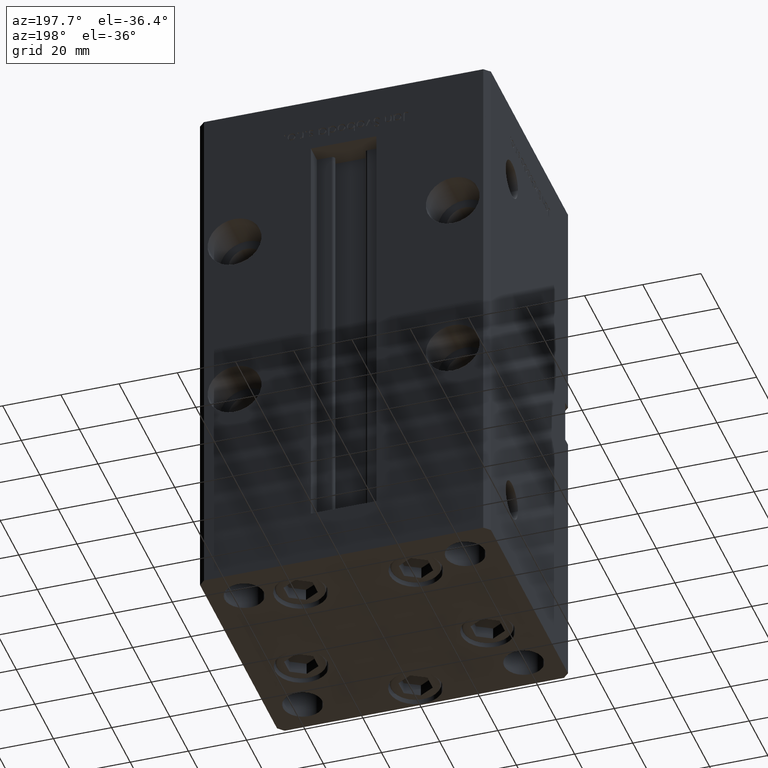
[diagram: clean part render]
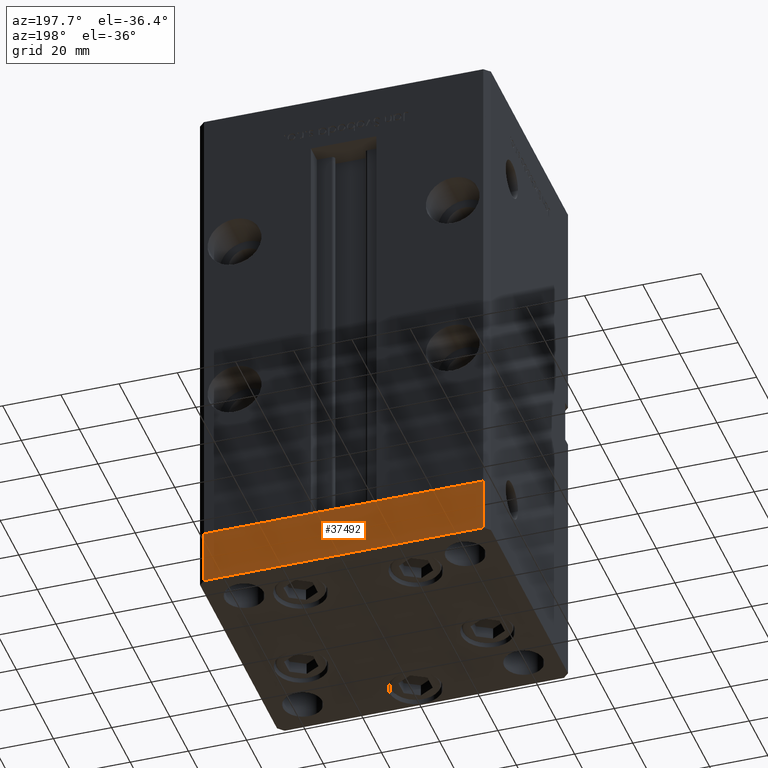
[diagram: same view with one face highlighted and labeled with its STEP entity id]
A machine part, auxiliary view. The second image highlights one B-rep face of the part: STEP entity #37492.
In plain terms, the highlighted planar face has unit normal (-0, 1, 0).
Its self-contained STEP definition (entity closure, byte-faithful):
#2277 = LINE ( 'NONE', #7345, #50392 ) ;
#2622 = DIRECTION ( 'NONE',  ( -3.614007241618350743E-16, 1.000000000000000000, 0.000000000000000000 ) ) ;
#2878 = DIRECTION ( 'NONE',  ( -1.000000000000000000, -3.614007241618350743E-16, 0.000000000000000000 ) ) ;
#2981 = ORIENTED_EDGE ( 'NONE', *, *, #3271, .T. ) ;
#3137 = CARTESIAN_POINT ( 'NONE',  ( 47.99999999999990763, 43.50000000000000000, -19.00000000000000000 ) ) ;
#3271 = EDGE_CURVE ( 'NONE', #50827, #17067, #2277, .T. ) ;
#3498 = CARTESIAN_POINT ( 'NONE',  ( 47.99999999999990763, 43.50000000000000000, -19.00000000000000000 ) ) ;
#6442 = ORIENTED_EDGE ( 'NONE', *, *, #51127, .F. ) ;
#6559 = CARTESIAN_POINT ( 'NONE',  ( 47.99999999999990763, 43.50000000000000000, 0.000000000000000000 ) ) ;
#6824 = LINE ( 'NONE', #6559, #50703 ) ;
#7345 = CARTESIAN_POINT ( 'NONE',  ( 47.99999999999990763, 43.50000000000000000, -19.00000000000000000 ) ) ;
#7523 = DIRECTION ( 'NONE',  ( 0.000000000000000000, 0.000000000000000000, 1.000000000000000000 ) ) ;
#9700 = EDGE_LOOP ( 'NONE', ( #35740, #6442, #2981, #26909 ) ) ;
#10331 = DIRECTION ( 'NONE',  ( -1.000000000000000000, -3.614007241618350743E-16, 0.000000000000000000 ) ) ;
#11025 = LINE ( 'NONE', #3498, #29075 ) ;
#12668 = VECTOR ( 'NONE', #36885, 1000.000000000000000 ) ;
#15636 = EDGE_CURVE ( 'NONE', #23914, #43369, #6824, .T. ) ;
#17067 = VERTEX_POINT ( 'NONE', #49731 ) ;
#22608 = CARTESIAN_POINT ( 'NONE',  ( -48.00000000000000711, 43.49999999999996447, 0.000000000000000000 ) ) ;
#22742 = CARTESIAN_POINT ( 'NONE',  ( 47.99999999999990763, 43.50000000000000000, -19.00000000000000000 ) ) ;
#23914 = VERTEX_POINT ( 'NONE', #44876 ) ;
#26909 = ORIENTED_EDGE ( 'NONE', *, *, #48827, .T. ) ;
#29075 = VECTOR ( 'NONE', #7523, 1000.000000000000000 ) ;
#29873 = PLANE ( 'NONE',  #46833 ) ;
#35740 = ORIENTED_EDGE ( 'NONE', *, *, #15636, .F. ) ;
#36885 = DIRECTION ( 'NONE',  ( 0.000000000000000000, 0.000000000000000000, 1.000000000000000000 ) ) ;
#37492 = ADVANCED_FACE ( 'NONE', ( #38188 ), #29873, .T. ) ;
#38188 = FACE_OUTER_BOUND ( 'NONE', #9700, .T. ) ;
#40373 = CARTESIAN_POINT ( 'NONE',  ( -48.00000000000000711, 43.49999999999996447, -19.00000000000000000 ) ) ;
#40903 = LINE ( 'NONE', #40373, #12668 ) ;
#43369 = VERTEX_POINT ( 'NONE', #22608 ) ;
#44876 = CARTESIAN_POINT ( 'NONE',  ( 47.99999999999990763, 43.50000000000000000, 0.000000000000000000 ) ) ;
#46833 = AXIS2_PLACEMENT_3D ( 'NONE', #3137, #2622, #2878 ) ;
#48209 = DIRECTION ( 'NONE',  ( -1.000000000000000000, -3.614007241618350743E-16, 0.000000000000000000 ) ) ;
#48827 = EDGE_CURVE ( 'NONE', #17067, #43369, #40903, .T. ) ;
#49731 = CARTESIAN_POINT ( 'NONE',  ( -48.00000000000000711, 43.49999999999996447, -19.00000000000000000 ) ) ;
#50392 = VECTOR ( 'NONE', #48209, 1000.000000000000000 ) ;
#50703 = VECTOR ( 'NONE', #10331, 1000.000000000000000 ) ;
#50827 = VERTEX_POINT ( 'NONE', #22742 ) ;
#51127 = EDGE_CURVE ( 'NONE', #50827, #23914, #11025, .T. ) ;